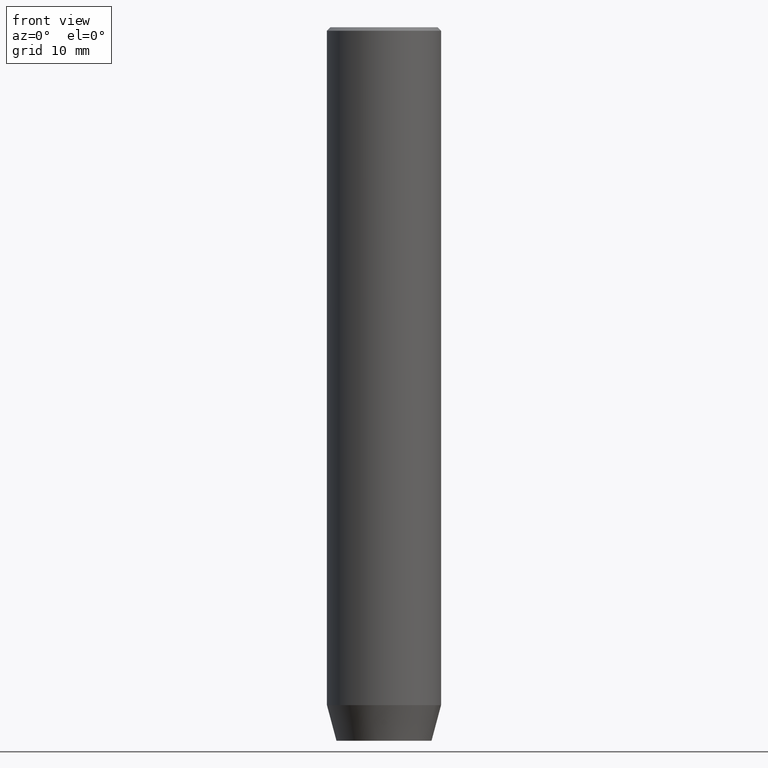
[diagram: clean part render]
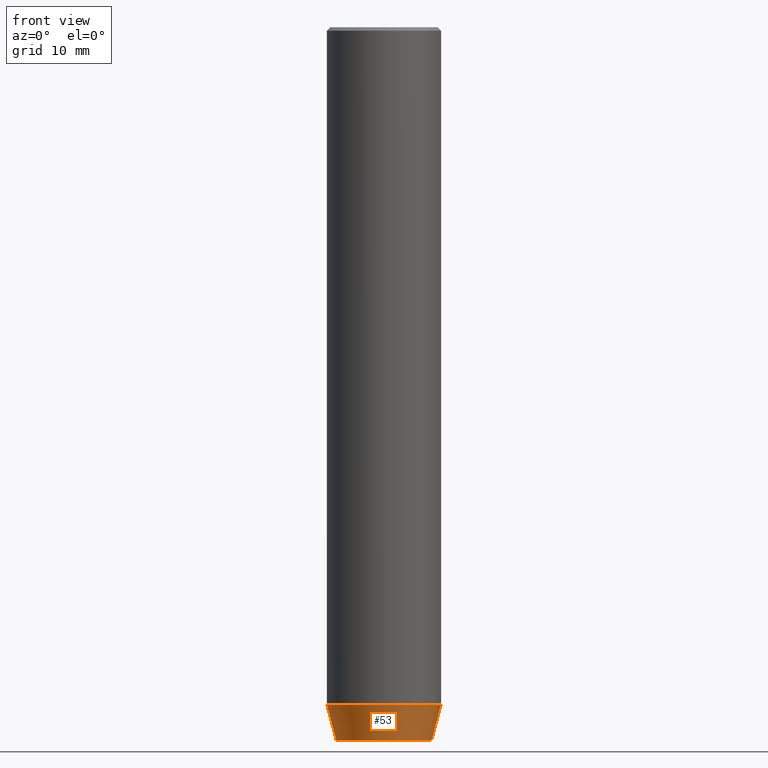
[diagram: same view with one face highlighted and labeled with its STEP entity id]
A machine part, front view. The second image highlights one B-rep face of the part: STEP entity #53.
In plain terms, the highlighted conical surface has half-angle 15 deg.
Its self-contained STEP definition (entity closure, byte-faithful):
#28 = LINE ( 'NONE', #256, #494 ) ;
#29 = ORIENTED_EDGE ( 'NONE', *, *, #184, .F. ) ;
#53 = ADVANCED_FACE ( 'NONE', ( #261 ), #280, .T. ) ;
#90 = EDGE_CURVE ( 'NONE', #516, #482, #388, .T. ) ;
#92 = CARTESIAN_POINT ( 'NONE',  ( 8.000000000000000000, 0.000000000000000000, -95.00000000000000000 ) ) ;
#111 = DIRECTION ( 'NONE',  ( 1.000000000000000000, 0.000000000000000000, 0.000000000000000000 ) ) ;
#133 = DIRECTION ( 'NONE',  ( 1.000000000000000000, 0.000000000000000000, 0.000000000000000000 ) ) ;
#140 = DIRECTION ( 'NONE',  ( 1.000000000000000000, 0.000000000000000000, 0.000000000000000000 ) ) ;
#146 = CARTESIAN_POINT ( 'NONE',  ( 6.660254037844381969, 0.000000000000000000, -100.0000000000000000 ) ) ;
#170 = ORIENTED_EDGE ( 'NONE', *, *, #296, .F. ) ;
#181 = VERTEX_POINT ( 'NONE', #426 ) ;
#184 = EDGE_CURVE ( 'NONE', #181, #387, #407, .T. ) ;
#201 = EDGE_LOOP ( 'NONE', ( #170, #566, #335, #29 ) ) ;
#212 = EDGE_CURVE ( 'NONE', #482, #387, #28, .T. ) ;
#227 = AXIS2_PLACEMENT_3D ( 'NONE', #502, #546, #140 ) ;
#235 = CARTESIAN_POINT ( 'NONE',  ( -6.660254037844381969, 8.976816591066591237E-16, -100.0000000000000000 ) ) ;
#256 = CARTESIAN_POINT ( 'NONE',  ( 8.000000000000000000, 0.000000000000000000, -95.00000000000000000 ) ) ;
#261 = FACE_OUTER_BOUND ( 'NONE', #201, .T. ) ;
#280 = CONICAL_SURFACE ( 'NONE', #336, 8.000000000000000000, 0.2617993877991500740 ) ;
#296 = EDGE_CURVE ( 'NONE', #516, #181, #446, .T. ) ;
#314 = DIRECTION ( 'NONE',  ( -0.000000000000000000, -0.000000000000000000, 1.000000000000000000 ) ) ;
#316 = AXIS2_PLACEMENT_3D ( 'NONE', #480, #334, #111 ) ;
#334 = DIRECTION ( 'NONE',  ( -0.000000000000000000, -0.000000000000000000, 1.000000000000000000 ) ) ;
#335 = ORIENTED_EDGE ( 'NONE', *, *, #212, .T. ) ;
#336 = AXIS2_PLACEMENT_3D ( 'NONE', #443, #314, #133 ) ;
#349 = DIRECTION ( 'NONE',  ( -0.2588190451025213501, 3.169619151431772337E-17, 0.9659258262890680902 ) ) ;
#387 = VERTEX_POINT ( 'NONE', #92 ) ;
#388 = CIRCLE ( 'NONE', #227, 6.660254037844381969 ) ;
#407 = CIRCLE ( 'NONE', #316, 8.000000000000000000 ) ;
#426 = CARTESIAN_POINT ( 'NONE',  ( -8.000000000000000000, 9.797174393178825657E-16, -95.00000000000000000 ) ) ;
#435 = VECTOR ( 'NONE', #349, 1000.000000000000000 ) ;
#443 = CARTESIAN_POINT ( 'NONE',  ( 0.000000000000000000, 0.000000000000000000, -95.00000000000000000 ) ) ;
#446 = LINE ( 'NONE', #500, #435 ) ;
#480 = CARTESIAN_POINT ( 'NONE',  ( 0.000000000000000000, 0.000000000000000000, -95.00000000000000000 ) ) ;
#482 = VERTEX_POINT ( 'NONE', #146 ) ;
#494 = VECTOR ( 'NONE', #522, 1000.000000000000000 ) ;
#500 = CARTESIAN_POINT ( 'NONE',  ( -8.000000000000000000, 9.797174393178825657E-16, -95.00000000000000000 ) ) ;
#502 = CARTESIAN_POINT ( 'NONE',  ( 0.000000000000000000, 0.000000000000000000, -100.0000000000000000 ) ) ;
#516 = VERTEX_POINT ( 'NONE', #235 ) ;
#522 = DIRECTION ( 'NONE',  ( 0.2588190451025213501, 0.000000000000000000, 0.9659258262890680902 ) ) ;
#546 = DIRECTION ( 'NONE',  ( -0.000000000000000000, -0.000000000000000000, 1.000000000000000000 ) ) ;
#566 = ORIENTED_EDGE ( 'NONE', *, *, #90, .T. ) ;